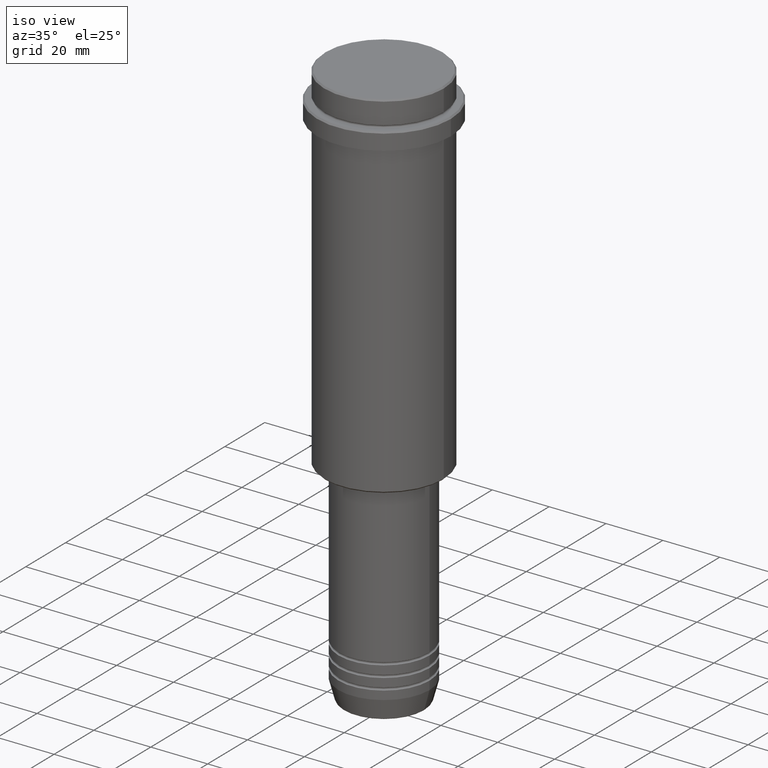
[diagram: clean part render]
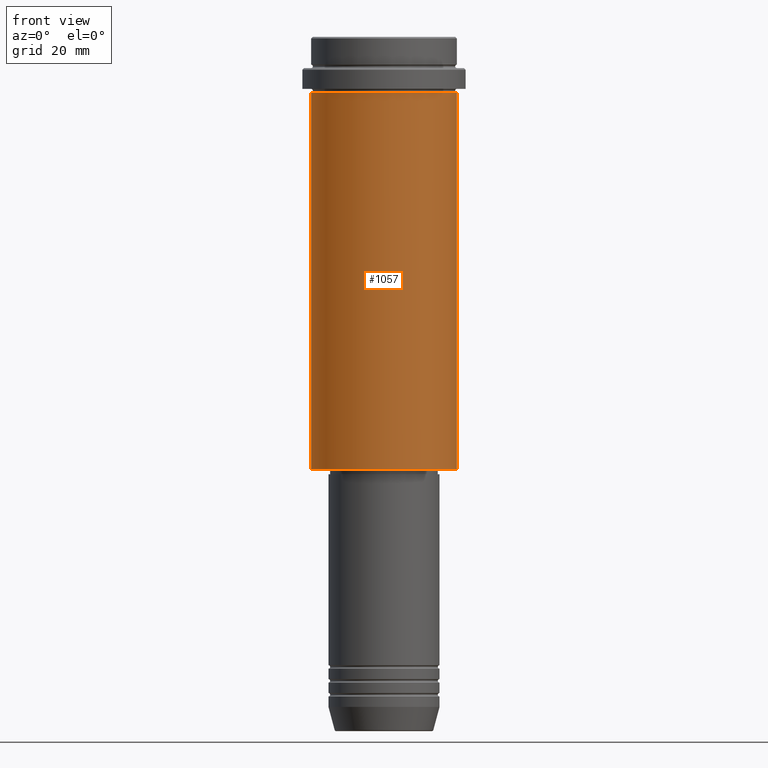
[diagram: tour spotlight — one face highlighted and labeled with its STEP entity id]
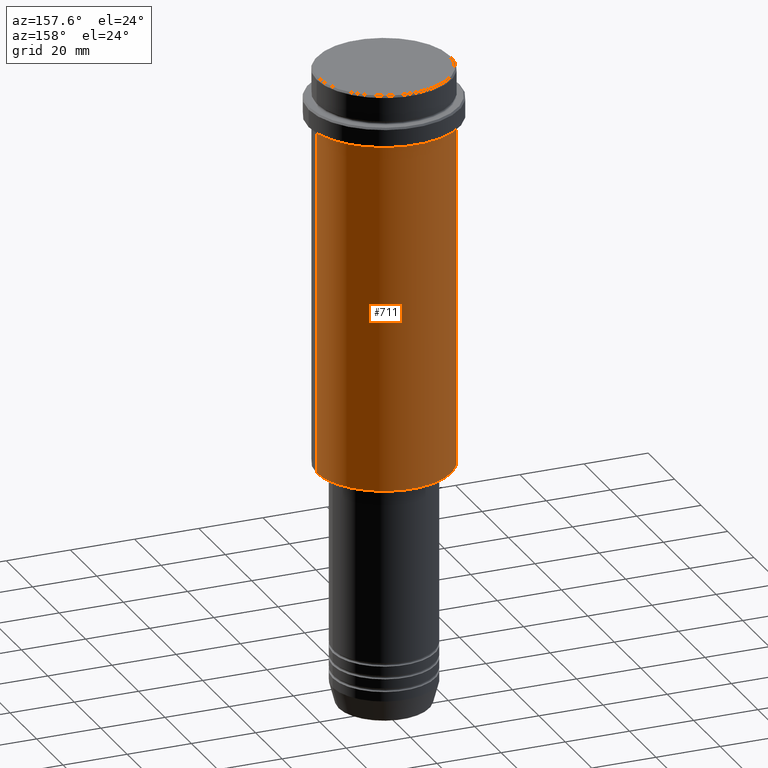
[diagram: tour spotlight — one face highlighted and labeled with its STEP entity id]
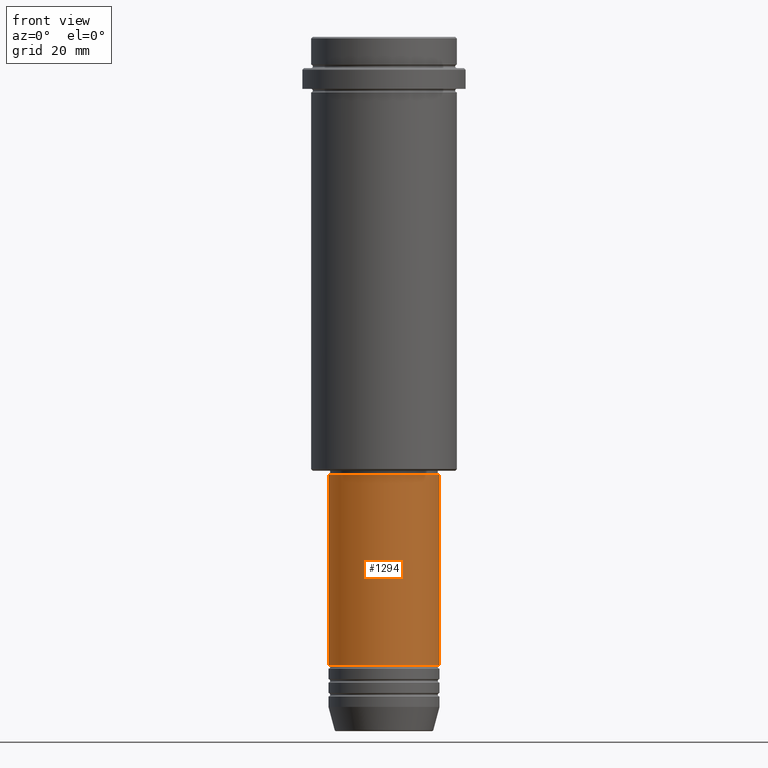
[diagram: tour spotlight — one face highlighted and labeled with its STEP entity id]
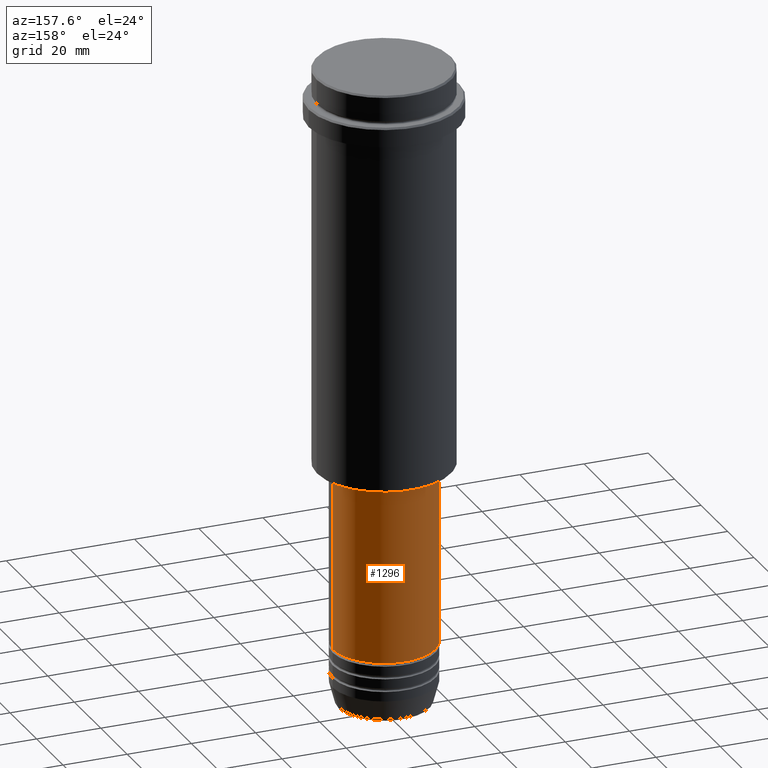
[diagram: tour spotlight — one face highlighted and labeled with its STEP entity id]
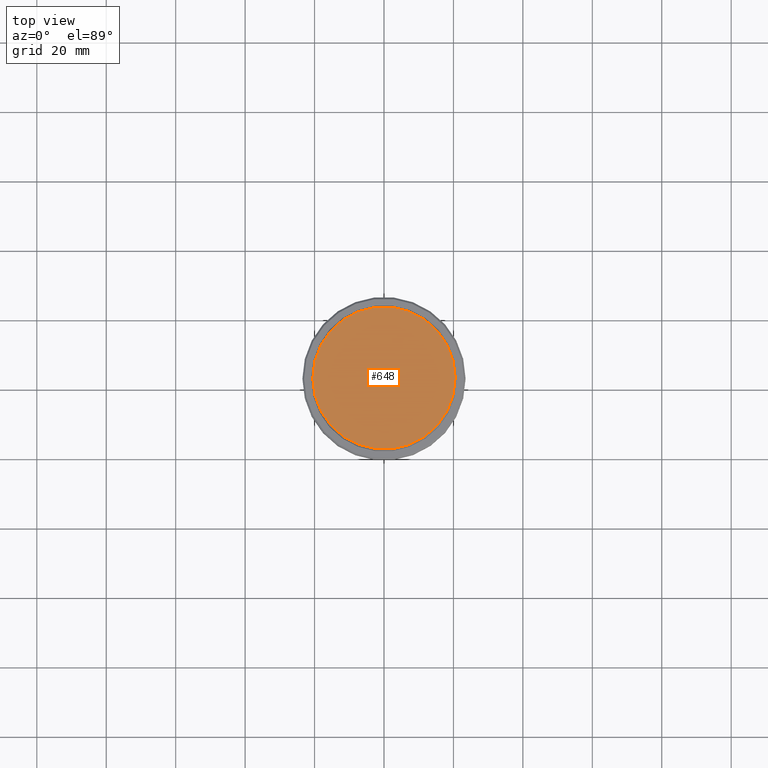
[diagram: tour spotlight — one face highlighted and labeled with its STEP entity id]
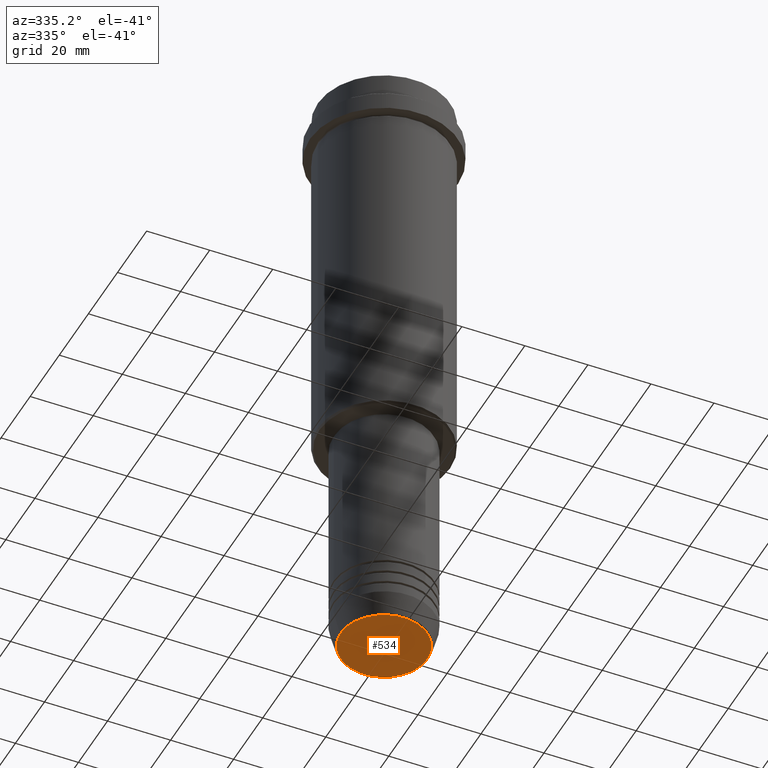
[diagram: tour spotlight — one face highlighted and labeled with its STEP entity id]
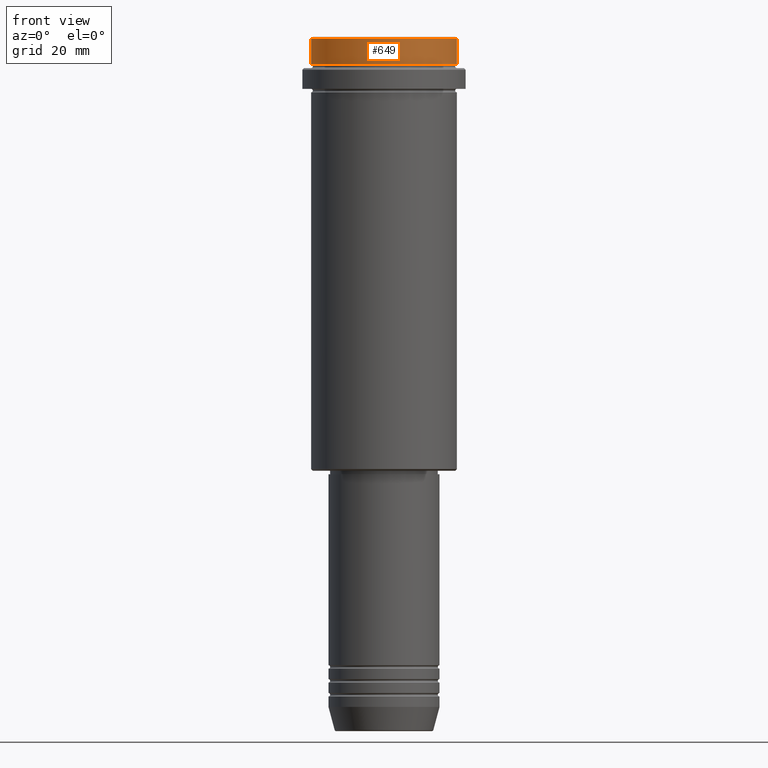
[diagram: tour spotlight — one face highlighted and labeled with its STEP entity id]
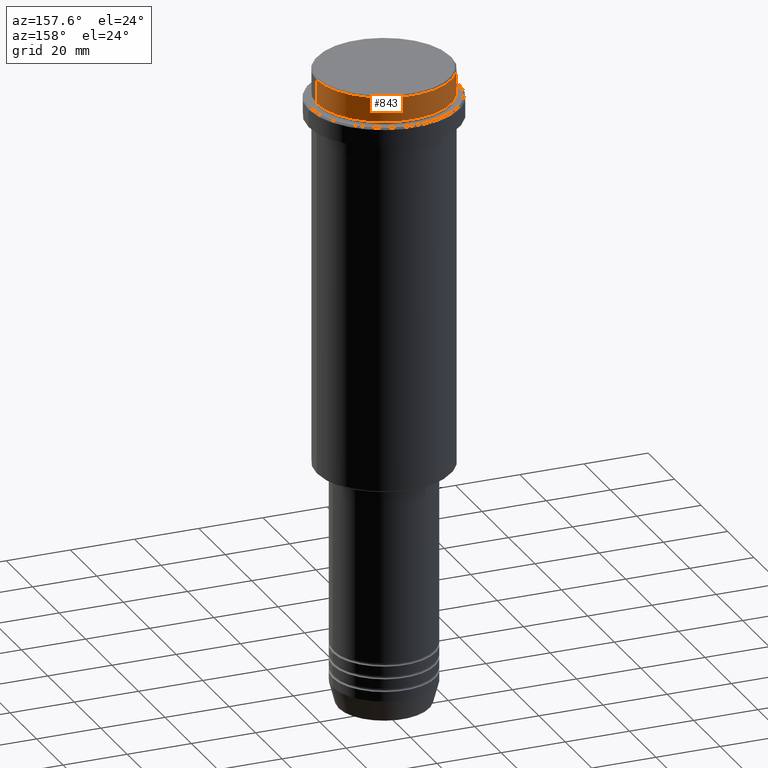
[diagram: tour spotlight — one face highlighted and labeled with its STEP entity id]
A machine part: a face-by-face anatomy tour. The part has 52 B-rep faces; the first image is the clean iso view, then the 8 largest visible faces are spotlighted one at a time (largest first), each with its STEP entity span.

Face 1 — front view, entity #1057. In plain terms, the highlighted cylindrical surface (partial cylindrical patch) has radius 21 mm, axis along (-0, -0, 1).
Definition (entity closure, byte-faithful):
#32 = DIRECTION ( 'NONE',  ( -1.000000000000000000, 0.000000000000000000, 0.000000000000000000 ) ) ;
#179 = CARTESIAN_POINT ( 'NONE',  ( 0.000000000000000000, 0.000000000000000000, 0.000000000000000000 ) ) ;
#211 = ORIENTED_EDGE ( 'NONE', *, *, #334, .T. ) ;
#223 = EDGE_CURVE ( 'NONE', #399, #830, #1205, .T. ) ;
#253 = LINE ( 'NONE', #462, #1293 ) ;
#263 = CARTESIAN_POINT ( 'NONE',  ( -21.00000000000000000, 2.571758278209441661E-15, -124.5000000000000284 ) ) ;
#277 = EDGE_CURVE ( 'NONE', #598, #399, #253, .T. ) ;
#295 = AXIS2_PLACEMENT_3D ( 'NONE', #1360, #684, #32 ) ;
#334 = EDGE_CURVE ( 'NONE', #598, #838, #820, .T. ) ;
#398 = CARTESIAN_POINT ( 'NONE',  ( 0.000000000000000000, 0.000000000000000000, -16.00000000000000355 ) ) ;
#399 = VERTEX_POINT ( 'NONE', #1069 ) ;
#403 = EDGE_LOOP ( 'NONE', ( #1261, #211, #1216, #964 ) ) ;
#462 = CARTESIAN_POINT ( 'NONE',  ( -21.00000000000000000, 2.571758278209441661E-15, 0.000000000000000000 ) ) ;
#598 = VERTEX_POINT ( 'NONE', #263 ) ;
#627 = CARTESIAN_POINT ( 'NONE',  ( 21.00000000000000000, 0.000000000000000000, -16.00000000000000355 ) ) ;
#677 = DIRECTION ( 'NONE',  ( -0.000000000000000000, -0.000000000000000000, 1.000000000000000000 ) ) ;
#684 = DIRECTION ( 'NONE',  ( -0.000000000000000000, -0.000000000000000000, 1.000000000000000000 ) ) ;
#694 = EDGE_CURVE ( 'NONE', #838, #830, #1254, .T. ) ;
#775 = DIRECTION ( 'NONE',  ( -0.000000000000000000, -0.000000000000000000, 1.000000000000000000 ) ) ;
#795 = VECTOR ( 'NONE', #677, 1000.000000000000000 ) ;
#809 = DIRECTION ( 'NONE',  ( -0.000000000000000000, -0.000000000000000000, 1.000000000000000000 ) ) ;
#818 = CYLINDRICAL_SURFACE ( 'NONE', #1276, 21.00000000000000000 ) ;
#820 = CIRCLE ( 'NONE', #295, 21.00000000000000000 ) ;
#830 = VERTEX_POINT ( 'NONE', #627 ) ;
#838 = VERTEX_POINT ( 'NONE', #981 ) ;
#958 = DIRECTION ( 'NONE',  ( -0.000000000000000000, -0.000000000000000000, 1.000000000000000000 ) ) ;
#964 = ORIENTED_EDGE ( 'NONE', *, *, #223, .F. ) ;
#981 = CARTESIAN_POINT ( 'NONE',  ( 21.00000000000000000, 0.000000000000000000, -124.5000000000000284 ) ) ;
#1052 = FACE_OUTER_BOUND ( 'NONE', #403, .T. ) ;
#1057 = ADVANCED_FACE ( 'NONE', ( #1052 ), #818, .T. ) ;
#1069 = CARTESIAN_POINT ( 'NONE',  ( -21.00000000000000000, 2.571758278209441661E-15, -16.00000000000000355 ) ) ;
#1144 = CARTESIAN_POINT ( 'NONE',  ( 21.00000000000000000, 0.000000000000000000, 0.000000000000000000 ) ) ;
#1205 = CIRCLE ( 'NONE', #1232, 21.00000000000000000 ) ;
#1216 = ORIENTED_EDGE ( 'NONE', *, *, #694, .T. ) ;
#1226 = DIRECTION ( 'NONE',  ( 1.000000000000000000, 0.000000000000000000, 0.000000000000000000 ) ) ;
#1232 = AXIS2_PLACEMENT_3D ( 'NONE', #398, #775, #1226 ) ;
#1254 = LINE ( 'NONE', #1144, #795 ) ;
#1261 = ORIENTED_EDGE ( 'NONE', *, *, #277, .F. ) ;
#1276 = AXIS2_PLACEMENT_3D ( 'NONE', #179, #958, #1285 ) ;
#1285 = DIRECTION ( 'NONE',  ( 1.000000000000000000, 0.000000000000000000, 0.000000000000000000 ) ) ;
#1293 = VECTOR ( 'NONE', #809, 1000.000000000000000 ) ;
#1360 = CARTESIAN_POINT ( 'NONE',  ( 0.000000000000000000, 0.000000000000000000, -124.5000000000000284 ) ) ;

Face 2 — auxiliary view, entity #711. In plain terms, the highlighted cylindrical surface (partial cylindrical patch) has radius 21 mm, axis along (-0, -0, 1).
Definition (entity closure, byte-faithful):
#30 = FACE_OUTER_BOUND ( 'NONE', #886, .T. ) ;
#53 = AXIS2_PLACEMENT_3D ( 'NONE', #936, #1070, #511 ) ;
#136 = CIRCLE ( 'NONE', #667, 21.00000000000000000 ) ;
#160 = CARTESIAN_POINT ( 'NONE',  ( 0.000000000000000000, 0.000000000000000000, -16.00000000000000355 ) ) ;
#253 = LINE ( 'NONE', #462, #1293 ) ;
#263 = CARTESIAN_POINT ( 'NONE',  ( -21.00000000000000000, 2.571758278209441661E-15, -124.5000000000000284 ) ) ;
#277 = EDGE_CURVE ( 'NONE', #598, #399, #253, .T. ) ;
#312 = ORIENTED_EDGE ( 'NONE', *, *, #1042, .T. ) ;
#399 = VERTEX_POINT ( 'NONE', #1069 ) ;
#441 = ORIENTED_EDGE ( 'NONE', *, *, #719, .F. ) ;
#462 = CARTESIAN_POINT ( 'NONE',  ( -21.00000000000000000, 2.571758278209441661E-15, 0.000000000000000000 ) ) ;
#511 = DIRECTION ( 'NONE',  ( -1.000000000000000000, 0.000000000000000000, 0.000000000000000000 ) ) ;
#598 = VERTEX_POINT ( 'NONE', #263 ) ;
#627 = CARTESIAN_POINT ( 'NONE',  ( 21.00000000000000000, 0.000000000000000000, -16.00000000000000355 ) ) ;
#640 = ORIENTED_EDGE ( 'NONE', *, *, #277, .T. ) ;
#667 = AXIS2_PLACEMENT_3D ( 'NONE', #160, #808, #934 ) ;
#677 = DIRECTION ( 'NONE',  ( -0.000000000000000000, -0.000000000000000000, 1.000000000000000000 ) ) ;
#694 = EDGE_CURVE ( 'NONE', #838, #830, #1254, .T. ) ;
#711 = ADVANCED_FACE ( 'NONE', ( #30 ), #899, .T. ) ;
#719 = EDGE_CURVE ( 'NONE', #830, #399, #136, .T. ) ;
#721 = ORIENTED_EDGE ( 'NONE', *, *, #694, .F. ) ;
#795 = VECTOR ( 'NONE', #677, 1000.000000000000000 ) ;
#798 = CIRCLE ( 'NONE', #53, 21.00000000000000000 ) ;
#808 = DIRECTION ( 'NONE',  ( -0.000000000000000000, -0.000000000000000000, 1.000000000000000000 ) ) ;
#809 = DIRECTION ( 'NONE',  ( -0.000000000000000000, -0.000000000000000000, 1.000000000000000000 ) ) ;
#830 = VERTEX_POINT ( 'NONE', #627 ) ;
#838 = VERTEX_POINT ( 'NONE', #981 ) ;
#886 = EDGE_LOOP ( 'NONE', ( #312, #640, #441, #721 ) ) ;
#899 = CYLINDRICAL_SURFACE ( 'NONE', #918, 21.00000000000000000 ) ;
#918 = AXIS2_PLACEMENT_3D ( 'NONE', #951, #1160, #945 ) ;
#934 = DIRECTION ( 'NONE',  ( 1.000000000000000000, 0.000000000000000000, 0.000000000000000000 ) ) ;
#936 = CARTESIAN_POINT ( 'NONE',  ( 0.000000000000000000, 0.000000000000000000, -124.5000000000000284 ) ) ;
#945 = DIRECTION ( 'NONE',  ( 1.000000000000000000, 0.000000000000000000, 0.000000000000000000 ) ) ;
#951 = CARTESIAN_POINT ( 'NONE',  ( 0.000000000000000000, 0.000000000000000000, 0.000000000000000000 ) ) ;
#981 = CARTESIAN_POINT ( 'NONE',  ( 21.00000000000000000, 0.000000000000000000, -124.5000000000000284 ) ) ;
#1042 = EDGE_CURVE ( 'NONE', #838, #598, #798, .T. ) ;
#1069 = CARTESIAN_POINT ( 'NONE',  ( -21.00000000000000000, 2.571758278209441661E-15, -16.00000000000000355 ) ) ;
#1070 = DIRECTION ( 'NONE',  ( -0.000000000000000000, -0.000000000000000000, 1.000000000000000000 ) ) ;
#1144 = CARTESIAN_POINT ( 'NONE',  ( 21.00000000000000000, 0.000000000000000000, 0.000000000000000000 ) ) ;
#1160 = DIRECTION ( 'NONE',  ( -0.000000000000000000, -0.000000000000000000, 1.000000000000000000 ) ) ;
#1254 = LINE ( 'NONE', #1144, #795 ) ;
#1293 = VECTOR ( 'NONE', #809, 1000.000000000000000 ) ;

Face 3 — front view, entity #1294. In plain terms, the highlighted cylindrical surface (partial cylindrical patch) has radius 16 mm, axis along (-0, -0, 1).
Definition (entity closure, byte-faithful):
#41 = EDGE_CURVE ( 'NONE', #1173, #979, #111, .T. ) ;
#111 = LINE ( 'NONE', #777, #1125 ) ;
#123 = AXIS2_PLACEMENT_3D ( 'NONE', #1026, #171, #803 ) ;
#171 = DIRECTION ( 'NONE',  ( -0.000000000000000000, -0.000000000000000000, 1.000000000000000000 ) ) ;
#233 = VECTOR ( 'NONE', #1215, 1000.000000000000000 ) ;
#268 = CYLINDRICAL_SURFACE ( 'NONE', #123, 16.00000000000000000 ) ;
#327 = DIRECTION ( 'NONE',  ( -0.000000000000000000, -0.000000000000000000, 1.000000000000000000 ) ) ;
#337 = CARTESIAN_POINT ( 'NONE',  ( 16.00000000000000355, 0.000000000000000000, -126.0000000000000000 ) ) ;
#380 = CARTESIAN_POINT ( 'NONE',  ( 0.000000000000000000, 0.000000000000000000, -126.0000000000000000 ) ) ;
#385 = DIRECTION ( 'NONE',  ( -0.000000000000000000, -0.000000000000000000, 1.000000000000000000 ) ) ;
#395 = VERTEX_POINT ( 'NONE', #1161 ) ;
#419 = LINE ( 'NONE', #1315, #233 ) ;
#436 = CARTESIAN_POINT ( 'NONE',  ( 16.00000000000000000, 0.000000000000000000, -180.9999999999998863 ) ) ;
#503 = CARTESIAN_POINT ( 'NONE',  ( 0.000000000000000000, 0.000000000000000000, -180.9999999999998863 ) ) ;
#504 = EDGE_LOOP ( 'NONE', ( #788, #1059, #1049, #615 ) ) ;
#577 = DIRECTION ( 'NONE',  ( -0.000000000000000000, -0.000000000000000000, 1.000000000000000000 ) ) ;
#589 = CARTESIAN_POINT ( 'NONE',  ( -16.00000000000000000, 1.959434878635765131E-15, -180.9999999999998863 ) ) ;
#615 = ORIENTED_EDGE ( 'NONE', *, *, #779, .F. ) ;
#619 = EDGE_CURVE ( 'NONE', #1035, #1173, #707, .T. ) ;
#707 = CIRCLE ( 'NONE', #1011, 16.00000000000000000 ) ;
#777 = CARTESIAN_POINT ( 'NONE',  ( 16.00000000000000000, 0.000000000000000000, 0.000000000000000000 ) ) ;
#779 = EDGE_CURVE ( 'NONE', #395, #979, #967, .T. ) ;
#788 = ORIENTED_EDGE ( 'NONE', *, *, #1153, .F. ) ;
#803 = DIRECTION ( 'NONE',  ( 1.000000000000000000, 0.000000000000000000, 0.000000000000000000 ) ) ;
#823 = AXIS2_PLACEMENT_3D ( 'NONE', #380, #577, #1268 ) ;
#967 = CIRCLE ( 'NONE', #823, 16.00000000000000355 ) ;
#979 = VERTEX_POINT ( 'NONE', #337 ) ;
#1011 = AXIS2_PLACEMENT_3D ( 'NONE', #503, #385, #1392 ) ;
#1026 = CARTESIAN_POINT ( 'NONE',  ( 0.000000000000000000, 0.000000000000000000, 0.000000000000000000 ) ) ;
#1035 = VERTEX_POINT ( 'NONE', #589 ) ;
#1049 = ORIENTED_EDGE ( 'NONE', *, *, #41, .T. ) ;
#1059 = ORIENTED_EDGE ( 'NONE', *, *, #619, .T. ) ;
#1125 = VECTOR ( 'NONE', #327, 1000.000000000000000 ) ;
#1153 = EDGE_CURVE ( 'NONE', #1035, #395, #419, .T. ) ;
#1161 = CARTESIAN_POINT ( 'NONE',  ( -16.00000000000000355, 1.959434878635765526E-15, -126.0000000000000000 ) ) ;
#1173 = VERTEX_POINT ( 'NONE', #436 ) ;
#1215 = DIRECTION ( 'NONE',  ( -0.000000000000000000, -0.000000000000000000, 1.000000000000000000 ) ) ;
#1268 = DIRECTION ( 'NONE',  ( 1.000000000000000000, 0.000000000000000000, 0.000000000000000000 ) ) ;
#1294 = ADVANCED_FACE ( 'NONE', ( #1370 ), #268, .T. ) ;
#1315 = CARTESIAN_POINT ( 'NONE',  ( -16.00000000000000000, 1.959434878635765131E-15, 0.000000000000000000 ) ) ;
#1370 = FACE_OUTER_BOUND ( 'NONE', #504, .T. ) ;
#1392 = DIRECTION ( 'NONE',  ( 1.000000000000000000, 0.000000000000000000, 0.000000000000000000 ) ) ;

Face 4 — auxiliary view, entity #1296. In plain terms, the highlighted cylindrical surface (partial cylindrical patch) has radius 16 mm, axis along (-0, -0, 1).
Definition (entity closure, byte-faithful):
#41 = EDGE_CURVE ( 'NONE', #1173, #979, #111, .T. ) ;
#111 = LINE ( 'NONE', #777, #1125 ) ;
#198 = DIRECTION ( 'NONE',  ( 1.000000000000000000, 0.000000000000000000, 0.000000000000000000 ) ) ;
#233 = VECTOR ( 'NONE', #1215, 1000.000000000000000 ) ;
#241 = ORIENTED_EDGE ( 'NONE', *, *, #468, .T. ) ;
#304 = CARTESIAN_POINT ( 'NONE',  ( 0.000000000000000000, 0.000000000000000000, -126.0000000000000000 ) ) ;
#327 = DIRECTION ( 'NONE',  ( -0.000000000000000000, -0.000000000000000000, 1.000000000000000000 ) ) ;
#337 = CARTESIAN_POINT ( 'NONE',  ( 16.00000000000000355, 0.000000000000000000, -126.0000000000000000 ) ) ;
#395 = VERTEX_POINT ( 'NONE', #1161 ) ;
#406 = CARTESIAN_POINT ( 'NONE',  ( 0.000000000000000000, 0.000000000000000000, -180.9999999999998863 ) ) ;
#419 = LINE ( 'NONE', #1315, #233 ) ;
#420 = ORIENTED_EDGE ( 'NONE', *, *, #1153, .T. ) ;
#436 = CARTESIAN_POINT ( 'NONE',  ( 16.00000000000000000, 0.000000000000000000, -180.9999999999998863 ) ) ;
#468 = EDGE_CURVE ( 'NONE', #1173, #1035, #582, .T. ) ;
#492 = DIRECTION ( 'NONE',  ( -0.000000000000000000, -0.000000000000000000, 1.000000000000000000 ) ) ;
#512 = EDGE_CURVE ( 'NONE', #979, #395, #847, .T. ) ;
#579 = FACE_OUTER_BOUND ( 'NONE', #800, .T. ) ;
#582 = CIRCLE ( 'NONE', #757, 16.00000000000000000 ) ;
#589 = CARTESIAN_POINT ( 'NONE',  ( -16.00000000000000000, 1.959434878635765131E-15, -180.9999999999998863 ) ) ;
#729 = ORIENTED_EDGE ( 'NONE', *, *, #41, .F. ) ;
#741 = DIRECTION ( 'NONE',  ( -0.000000000000000000, -0.000000000000000000, 1.000000000000000000 ) ) ;
#757 = AXIS2_PLACEMENT_3D ( 'NONE', #406, #492, #1408 ) ;
#765 = AXIS2_PLACEMENT_3D ( 'NONE', #1045, #1361, #790 ) ;
#777 = CARTESIAN_POINT ( 'NONE',  ( 16.00000000000000000, 0.000000000000000000, 0.000000000000000000 ) ) ;
#790 = DIRECTION ( 'NONE',  ( 1.000000000000000000, 0.000000000000000000, 0.000000000000000000 ) ) ;
#800 = EDGE_LOOP ( 'NONE', ( #241, #420, #1200, #729 ) ) ;
#847 = CIRCLE ( 'NONE', #988, 16.00000000000000355 ) ;
#928 = CYLINDRICAL_SURFACE ( 'NONE', #765, 16.00000000000000000 ) ;
#979 = VERTEX_POINT ( 'NONE', #337 ) ;
#988 = AXIS2_PLACEMENT_3D ( 'NONE', #304, #741, #198 ) ;
#1035 = VERTEX_POINT ( 'NONE', #589 ) ;
#1045 = CARTESIAN_POINT ( 'NONE',  ( 0.000000000000000000, 0.000000000000000000, 0.000000000000000000 ) ) ;
#1125 = VECTOR ( 'NONE', #327, 1000.000000000000000 ) ;
#1153 = EDGE_CURVE ( 'NONE', #1035, #395, #419, .T. ) ;
#1161 = CARTESIAN_POINT ( 'NONE',  ( -16.00000000000000355, 1.959434878635765526E-15, -126.0000000000000000 ) ) ;
#1173 = VERTEX_POINT ( 'NONE', #436 ) ;
#1200 = ORIENTED_EDGE ( 'NONE', *, *, #512, .F. ) ;
#1215 = DIRECTION ( 'NONE',  ( -0.000000000000000000, -0.000000000000000000, 1.000000000000000000 ) ) ;
#1296 = ADVANCED_FACE ( 'NONE', ( #579 ), #928, .T. ) ;
#1315 = CARTESIAN_POINT ( 'NONE',  ( -16.00000000000000000, 1.959434878635765131E-15, 0.000000000000000000 ) ) ;
#1361 = DIRECTION ( 'NONE',  ( -0.000000000000000000, -0.000000000000000000, 1.000000000000000000 ) ) ;
#1408 = DIRECTION ( 'NONE',  ( 1.000000000000000000, 0.000000000000000000, 0.000000000000000000 ) ) ;

Face 5 — top view, entity #648. In plain terms, the highlighted planar face has unit normal (0, -0, 1).
Definition (entity closure, byte-faithful):
#188 = AXIS2_PLACEMENT_3D ( 'NONE', #894, #1014, #1250 ) ;
#196 = FACE_OUTER_BOUND ( 'NONE', #860, .T. ) ;
#220 = CARTESIAN_POINT ( 'NONE',  ( -20.50000000000001776, 0.000000000000000000, 0.000000000000000000 ) ) ;
#404 = PLANE ( 'NONE',  #1029 ) ;
#429 = EDGE_CURVE ( 'NONE', #972, #485, #965, .T. ) ;
#485 = VERTEX_POINT ( 'NONE', #1063 ) ;
#648 = ADVANCED_FACE ( 'NONE', ( #196 ), #404, .T. ) ;
#732 = DIRECTION ( 'NONE',  ( -0.000000000000000000, -0.000000000000000000, 1.000000000000000000 ) ) ;
#815 = DIRECTION ( 'NONE',  ( 1.000000000000000000, 0.000000000000000000, 0.000000000000000000 ) ) ;
#845 = CARTESIAN_POINT ( 'NONE',  ( 0.000000000000000000, 0.000000000000000000, 0.000000000000000000 ) ) ;
#860 = EDGE_LOOP ( 'NONE', ( #982, #1367 ) ) ;
#894 = CARTESIAN_POINT ( 'NONE',  ( 0.000000000000000000, 0.000000000000000000, 0.000000000000000000 ) ) ;
#900 = EDGE_CURVE ( 'NONE', #485, #972, #1321, .T. ) ;
#925 = DIRECTION ( 'NONE',  ( 0.000000000000000000, -0.000000000000000000, 1.000000000000000000 ) ) ;
#965 = CIRCLE ( 'NONE', #1083, 20.50000000000001776 ) ;
#972 = VERTEX_POINT ( 'NONE', #220 ) ;
#982 = ORIENTED_EDGE ( 'NONE', *, *, #429, .T. ) ;
#1014 = DIRECTION ( 'NONE',  ( -0.000000000000000000, -0.000000000000000000, 1.000000000000000000 ) ) ;
#1029 = AXIS2_PLACEMENT_3D ( 'NONE', #845, #925, #815 ) ;
#1063 = CARTESIAN_POINT ( 'NONE',  ( 20.50000000000001776, 2.541142108230759057E-15, 0.000000000000000000 ) ) ;
#1083 = AXIS2_PLACEMENT_3D ( 'NONE', #1192, #732, #1284 ) ;
#1192 = CARTESIAN_POINT ( 'NONE',  ( 0.000000000000000000, 0.000000000000000000, 0.000000000000000000 ) ) ;
#1250 = DIRECTION ( 'NONE',  ( 1.000000000000000000, 0.000000000000000000, 0.000000000000000000 ) ) ;
#1284 = DIRECTION ( 'NONE',  ( 1.000000000000000000, 0.000000000000000000, 0.000000000000000000 ) ) ;
#1321 = CIRCLE ( 'NONE', #188, 20.50000000000001776 ) ;
#1367 = ORIENTED_EDGE ( 'NONE', *, *, #900, .T. ) ;

Face 6 — auxiliary view, entity #534. In plain terms, the highlighted planar face has unit normal (0, -0, 1).
Definition (entity closure, byte-faithful):
#117 = AXIS2_PLACEMENT_3D ( 'NONE', #953, #600, #1051 ) ;
#287 = DIRECTION ( 'NONE',  ( 1.000000000000000000, 0.000000000000000000, 0.000000000000000000 ) ) ;
#298 = CIRCLE ( 'NONE', #687, 13.74069215899265828 ) ;
#310 = EDGE_LOOP ( 'NONE', ( #929, #427 ) ) ;
#317 = DIRECTION ( 'NONE',  ( 1.000000000000000000, 0.000000000000000000, 0.000000000000000000 ) ) ;
#389 = PLANE ( 'NONE',  #117 ) ;
#427 = ORIENTED_EDGE ( 'NONE', *, *, #718, .T. ) ;
#516 = VERTEX_POINT ( 'NONE', #626 ) ;
#534 = ADVANCED_FACE ( 'NONE', ( #966 ), #389, .F. ) ;
#599 = DIRECTION ( 'NONE',  ( 0.000000000000000000, 0.000000000000000000, -1.000000000000000000 ) ) ;
#600 = DIRECTION ( 'NONE',  ( 0.000000000000000000, -0.000000000000000000, 1.000000000000000000 ) ) ;
#626 = CARTESIAN_POINT ( 'NONE',  ( -13.74069215899265828, 1.712322416342415986E-15, -200.0000000000000000 ) ) ;
#638 = CIRCLE ( 'NONE', #1405, 13.74069215899265828 ) ;
#639 = CARTESIAN_POINT ( 'NONE',  ( 13.74069215899265828, 0.000000000000000000, -200.0000000000000000 ) ) ;
#687 = AXIS2_PLACEMENT_3D ( 'NONE', #703, #599, #287 ) ;
#703 = CARTESIAN_POINT ( 'NONE',  ( 0.000000000000000000, 0.000000000000000000, -200.0000000000000000 ) ) ;
#718 = EDGE_CURVE ( 'NONE', #516, #920, #298, .T. ) ;
#737 = CARTESIAN_POINT ( 'NONE',  ( 0.000000000000000000, 0.000000000000000000, -200.0000000000000000 ) ) ;
#753 = DIRECTION ( 'NONE',  ( 0.000000000000000000, 0.000000000000000000, -1.000000000000000000 ) ) ;
#903 = EDGE_CURVE ( 'NONE', #920, #516, #638, .T. ) ;
#920 = VERTEX_POINT ( 'NONE', #639 ) ;
#929 = ORIENTED_EDGE ( 'NONE', *, *, #903, .T. ) ;
#953 = CARTESIAN_POINT ( 'NONE',  ( 0.000000000000000000, 0.000000000000000000, -200.0000000000000000 ) ) ;
#966 = FACE_OUTER_BOUND ( 'NONE', #310, .T. ) ;
#1051 = DIRECTION ( 'NONE',  ( 1.000000000000000000, 0.000000000000000000, 0.000000000000000000 ) ) ;
#1405 = AXIS2_PLACEMENT_3D ( 'NONE', #737, #753, #317 ) ;

Face 7 — front view, entity #649. In plain terms, the highlighted cylindrical surface (partial cylindrical patch) has radius 21 mm, axis along (-0, -0, 1).
Definition (entity closure, byte-faithful):
#8 = AXIS2_PLACEMENT_3D ( 'NONE', #1338, #560, #1255 ) ;
#57 = CARTESIAN_POINT ( 'NONE',  ( 21.00000000000000000, 0.000000000000000000, -0.5000000000000108802 ) ) ;
#137 = DIRECTION ( 'NONE',  ( -0.000000000000000000, -0.000000000000000000, 1.000000000000000000 ) ) ;
#234 = CARTESIAN_POINT ( 'NONE',  ( 0.000000000000000000, 0.000000000000000000, 0.000000000000000000 ) ) ;
#242 = DIRECTION ( 'NONE',  ( -0.000000000000000000, -0.000000000000000000, 1.000000000000000000 ) ) ;
#251 = LINE ( 'NONE', #343, #435 ) ;
#259 = DIRECTION ( 'NONE',  ( -0.000000000000000000, -0.000000000000000000, 1.000000000000000000 ) ) ;
#260 = CARTESIAN_POINT ( 'NONE',  ( 21.00000000000000000, 0.000000000000000000, -7.999999999999998224 ) ) ;
#262 = EDGE_CURVE ( 'NONE', #862, #902, #685, .T. ) ;
#270 = FACE_OUTER_BOUND ( 'NONE', #702, .T. ) ;
#318 = VERTEX_POINT ( 'NONE', #57 ) ;
#343 = CARTESIAN_POINT ( 'NONE',  ( 21.00000000000000000, 0.000000000000000000, 0.000000000000000000 ) ) ;
#358 = EDGE_CURVE ( 'NONE', #862, #957, #927, .T. ) ;
#435 = VECTOR ( 'NONE', #137, 1000.000000000000000 ) ;
#439 = ORIENTED_EDGE ( 'NONE', *, *, #358, .F. ) ;
#490 = DIRECTION ( 'NONE',  ( 1.000000000000000000, 0.000000000000000000, 0.000000000000000000 ) ) ;
#553 = DIRECTION ( 'NONE',  ( 1.000000000000000000, 0.000000000000000000, 0.000000000000000000 ) ) ;
#560 = DIRECTION ( 'NONE',  ( -0.000000000000000000, -0.000000000000000000, 1.000000000000000000 ) ) ;
#576 = ORIENTED_EDGE ( 'NONE', *, *, #262, .T. ) ;
#628 = EDGE_CURVE ( 'NONE', #318, #957, #1109, .T. ) ;
#629 = CARTESIAN_POINT ( 'NONE',  ( -21.00000000000000000, 2.571758278209441661E-15, -0.5000000000000108802 ) ) ;
#649 = ADVANCED_FACE ( 'NONE', ( #270 ), #1086, .T. ) ;
#657 = EDGE_CURVE ( 'NONE', #902, #318, #251, .T. ) ;
#685 = CIRCLE ( 'NONE', #8, 21.00000000000000000 ) ;
#689 = CARTESIAN_POINT ( 'NONE',  ( -21.00000000000000000, 2.571758278209441661E-15, -7.999999999999998224 ) ) ;
#702 = EDGE_LOOP ( 'NONE', ( #439, #576, #1171, #1186 ) ) ;
#862 = VERTEX_POINT ( 'NONE', #689 ) ;
#902 = VERTEX_POINT ( 'NONE', #260 ) ;
#927 = LINE ( 'NONE', #1369, #1245 ) ;
#956 = DIRECTION ( 'NONE',  ( 0.000000000000000000, 0.000000000000000000, -1.000000000000000000 ) ) ;
#957 = VERTEX_POINT ( 'NONE', #629 ) ;
#1086 = CYLINDRICAL_SURFACE ( 'NONE', #1378, 21.00000000000000000 ) ;
#1109 = CIRCLE ( 'NONE', #1207, 21.00000000000000000 ) ;
#1171 = ORIENTED_EDGE ( 'NONE', *, *, #657, .T. ) ;
#1186 = ORIENTED_EDGE ( 'NONE', *, *, #628, .T. ) ;
#1207 = AXIS2_PLACEMENT_3D ( 'NONE', #1299, #956, #490 ) ;
#1245 = VECTOR ( 'NONE', #259, 1000.000000000000000 ) ;
#1255 = DIRECTION ( 'NONE',  ( 1.000000000000000000, 0.000000000000000000, 0.000000000000000000 ) ) ;
#1299 = CARTESIAN_POINT ( 'NONE',  ( 0.000000000000000000, 0.000000000000000000, -0.5000000000000108802 ) ) ;
#1338 = CARTESIAN_POINT ( 'NONE',  ( 0.000000000000000000, 0.000000000000000000, -7.999999999999998224 ) ) ;
#1369 = CARTESIAN_POINT ( 'NONE',  ( -21.00000000000000000, 2.571758278209441661E-15, 0.000000000000000000 ) ) ;
#1378 = AXIS2_PLACEMENT_3D ( 'NONE', #234, #242, #553 ) ;

Face 8 — auxiliary view, entity #843. In plain terms, the highlighted cylindrical surface (partial cylindrical patch) has radius 21 mm, axis along (-0, -0, 1).
Definition (entity closure, byte-faithful):
#57 = CARTESIAN_POINT ( 'NONE',  ( 21.00000000000000000, 0.000000000000000000, -0.5000000000000108802 ) ) ;
#76 = ORIENTED_EDGE ( 'NONE', *, *, #657, .F. ) ;
#137 = DIRECTION ( 'NONE',  ( -0.000000000000000000, -0.000000000000000000, 1.000000000000000000 ) ) ;
#155 = DIRECTION ( 'NONE',  ( 1.000000000000000000, 0.000000000000000000, 0.000000000000000000 ) ) ;
#193 = DIRECTION ( 'NONE',  ( 1.000000000000000000, 0.000000000000000000, 0.000000000000000000 ) ) ;
#209 = AXIS2_PLACEMENT_3D ( 'NONE', #296, #734, #193 ) ;
#251 = LINE ( 'NONE', #343, #435 ) ;
#259 = DIRECTION ( 'NONE',  ( -0.000000000000000000, -0.000000000000000000, 1.000000000000000000 ) ) ;
#260 = CARTESIAN_POINT ( 'NONE',  ( 21.00000000000000000, 0.000000000000000000, -7.999999999999998224 ) ) ;
#294 = CARTESIAN_POINT ( 'NONE',  ( 0.000000000000000000, 0.000000000000000000, -7.999999999999998224 ) ) ;
#296 = CARTESIAN_POINT ( 'NONE',  ( 0.000000000000000000, 0.000000000000000000, 0.000000000000000000 ) ) ;
#318 = VERTEX_POINT ( 'NONE', #57 ) ;
#343 = CARTESIAN_POINT ( 'NONE',  ( 21.00000000000000000, 0.000000000000000000, 0.000000000000000000 ) ) ;
#358 = EDGE_CURVE ( 'NONE', #862, #957, #927, .T. ) ;
#431 = FACE_OUTER_BOUND ( 'NONE', #637, .T. ) ;
#435 = VECTOR ( 'NONE', #137, 1000.000000000000000 ) ;
#474 = AXIS2_PLACEMENT_3D ( 'NONE', #294, #731, #155 ) ;
#629 = CARTESIAN_POINT ( 'NONE',  ( -21.00000000000000000, 2.571758278209441661E-15, -0.5000000000000108802 ) ) ;
#637 = EDGE_LOOP ( 'NONE', ( #688, #1189, #747, #76 ) ) ;
#656 = DIRECTION ( 'NONE',  ( 0.000000000000000000, 0.000000000000000000, -1.000000000000000000 ) ) ;
#657 = EDGE_CURVE ( 'NONE', #902, #318, #251, .T. ) ;
#668 = AXIS2_PLACEMENT_3D ( 'NONE', #1225, #656, #1108 ) ;
#688 = ORIENTED_EDGE ( 'NONE', *, *, #778, .T. ) ;
#689 = CARTESIAN_POINT ( 'NONE',  ( -21.00000000000000000, 2.571758278209441661E-15, -7.999999999999998224 ) ) ;
#731 = DIRECTION ( 'NONE',  ( -0.000000000000000000, -0.000000000000000000, 1.000000000000000000 ) ) ;
#734 = DIRECTION ( 'NONE',  ( -0.000000000000000000, -0.000000000000000000, 1.000000000000000000 ) ) ;
#747 = ORIENTED_EDGE ( 'NONE', *, *, #1095, .T. ) ;
#778 = EDGE_CURVE ( 'NONE', #902, #862, #1031, .T. ) ;
#843 = ADVANCED_FACE ( 'NONE', ( #431 ), #873, .T. ) ;
#862 = VERTEX_POINT ( 'NONE', #689 ) ;
#873 = CYLINDRICAL_SURFACE ( 'NONE', #209, 21.00000000000000000 ) ;
#902 = VERTEX_POINT ( 'NONE', #260 ) ;
#927 = LINE ( 'NONE', #1369, #1245 ) ;
#957 = VERTEX_POINT ( 'NONE', #629 ) ;
#1031 = CIRCLE ( 'NONE', #474, 21.00000000000000000 ) ;
#1095 = EDGE_CURVE ( 'NONE', #957, #318, #1182, .T. ) ;
#1108 = DIRECTION ( 'NONE',  ( 1.000000000000000000, 0.000000000000000000, 0.000000000000000000 ) ) ;
#1182 = CIRCLE ( 'NONE', #668, 21.00000000000000000 ) ;
#1189 = ORIENTED_EDGE ( 'NONE', *, *, #358, .T. ) ;
#1225 = CARTESIAN_POINT ( 'NONE',  ( 0.000000000000000000, 0.000000000000000000, -0.5000000000000108802 ) ) ;
#1245 = VECTOR ( 'NONE', #259, 1000.000000000000000 ) ;
#1369 = CARTESIAN_POINT ( 'NONE',  ( -21.00000000000000000, 2.571758278209441661E-15, 0.000000000000000000 ) ) ;